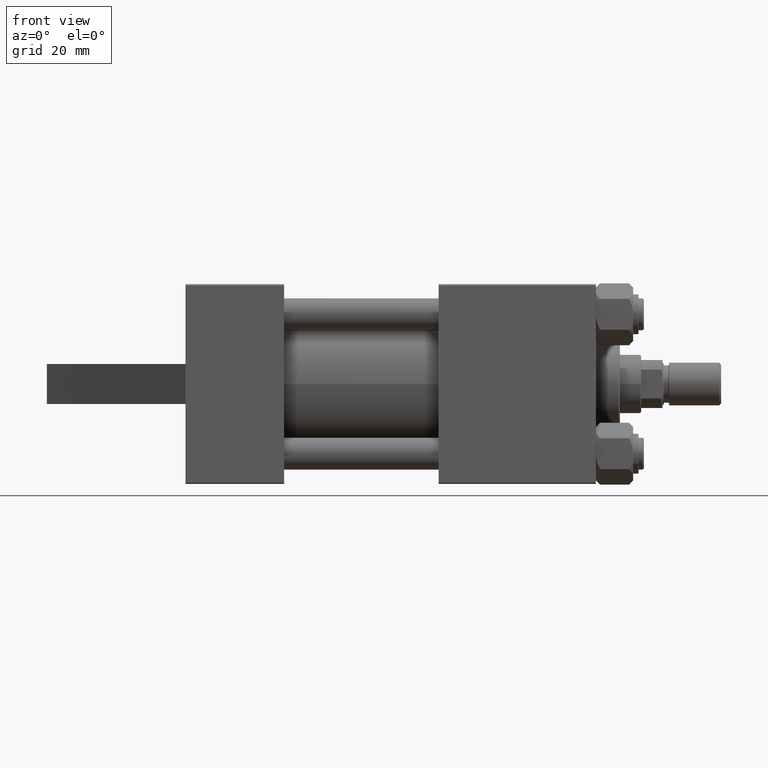
[diagram: clean part render]
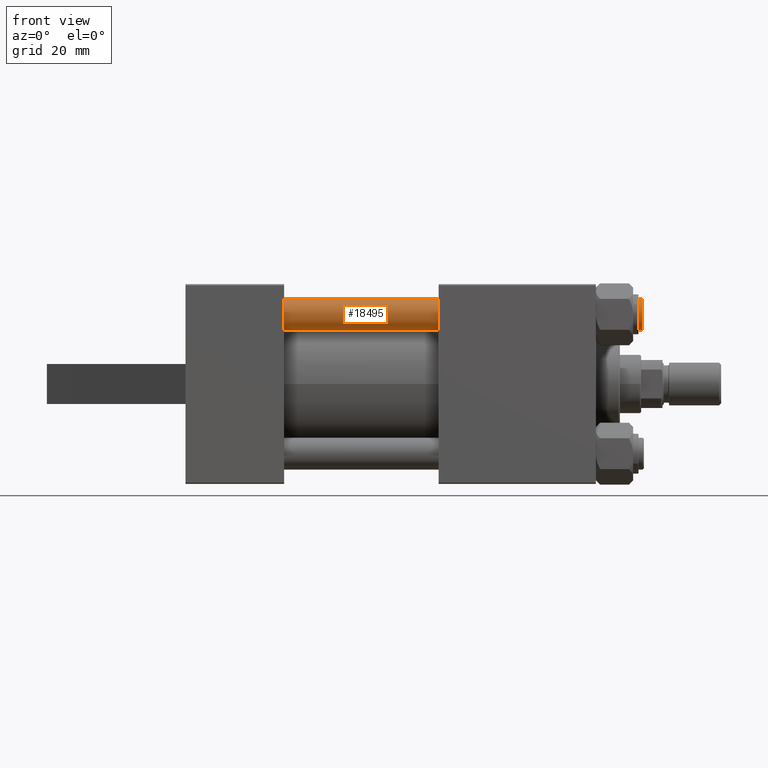
[diagram: same view with one face highlighted and labeled with its STEP entity id]
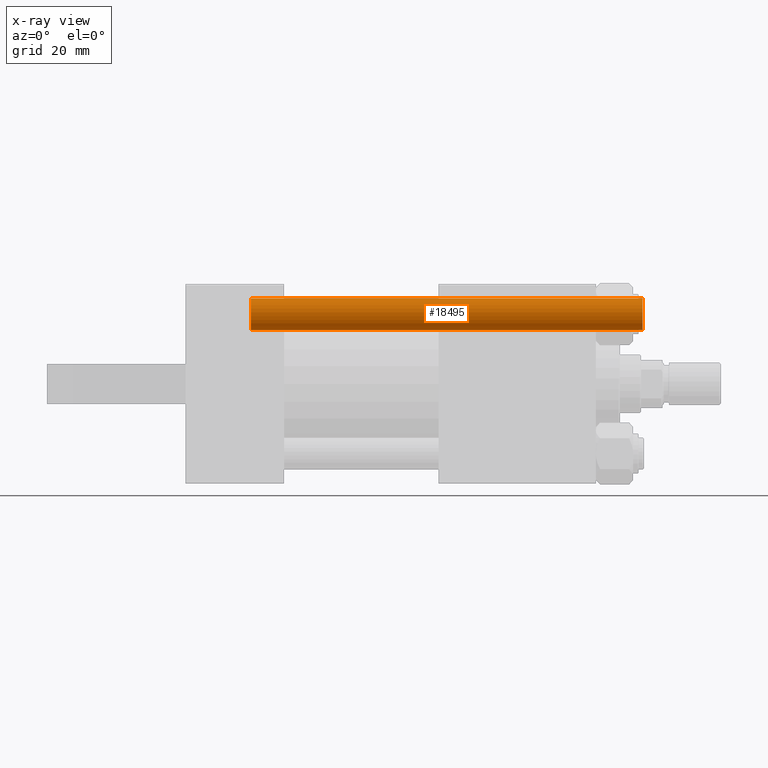
[diagram: x-ray of the same camera — body ghosted, the highlighted face saturated]
A machine part, front view. The second image highlights one B-rep face of the part: STEP entity #18495.
The next image is the same camera in x-ray: the body ghosted, the highlighted face saturated — about 0% of this face is hidden behind the body in this view.
In plain terms, the highlighted cylindrical surface (edge-blend (fillet) strip) has radius 6 mm, axis along (1, 0, 0).
Its self-contained STEP definition (entity closure, byte-faithful):
#356 = CARTESIAN_POINT ( 'NONE',  ( 6.000000000000000888, 7.347880794884120722E-16, 0.5000000000000281997 ) ) ;
#692 = ORIENTED_EDGE ( 'NONE', *, *, #24435, .F. ) ;
#1540 = CARTESIAN_POINT ( 'NONE',  ( -6.000000000000000888, 0.000000000000000000, 147.5000000000000000 ) ) ;
#8440 = VERTEX_POINT ( 'NONE', #356 ) ;
#9517 = DIRECTION ( 'NONE',  ( -0.000000000000000000, -0.000000000000000000, -1.000000000000000000 ) ) ;
#9741 = LINE ( 'NONE', #42201, #23483 ) ;
#10727 = CYLINDRICAL_SURFACE ( 'NONE', #26185, 6.000000000000000888 ) ;
#11098 = VERTEX_POINT ( 'NONE', #22999 ) ;
#11562 = EDGE_CURVE ( 'NONE', #8440, #30013, #25197, .T. ) ;
#14266 = DIRECTION ( 'NONE',  ( -1.000000000000000000, 0.000000000000000000, 0.000000000000000000 ) ) ;
#14567 = DIRECTION ( 'NONE',  ( -0.000000000000000000, -0.000000000000000000, -1.000000000000000000 ) ) ;
#18018 = CARTESIAN_POINT ( 'NONE',  ( 0.000000000000000000, 0.000000000000000000, 148.0000000000000000 ) ) ;
#18495 = ADVANCED_FACE ( 'NONE', ( #33050 ), #10727, .T. ) ;
#21833 = LINE ( 'NONE', #36199, #30130 ) ;
#22999 = CARTESIAN_POINT ( 'NONE',  ( 6.000000000000000888, 7.347880794884120722E-16, 147.5000000000000000 ) ) ;
#23483 = VECTOR ( 'NONE', #9517, 1000.000000000000000 ) ;
#24435 = EDGE_CURVE ( 'NONE', #30860, #30013, #21833, .T. ) ;
#25073 = DIRECTION ( 'NONE',  ( -0.000000000000000000, -0.000000000000000000, -1.000000000000000000 ) ) ;
#25197 = CIRCLE ( 'NONE', #28958, 6.000000000000000888 ) ;
#26185 = AXIS2_PLACEMENT_3D ( 'NONE', #18018, #25073, #14266 ) ;
#28062 = CARTESIAN_POINT ( 'NONE',  ( -6.000000000000000888, 0.000000000000000000, 0.5000000000000281997 ) ) ;
#28724 = DIRECTION ( 'NONE',  ( -0.000000000000000000, -0.000000000000000000, 1.000000000000000000 ) ) ;
#28958 = AXIS2_PLACEMENT_3D ( 'NONE', #43312, #28724, #44002 ) ;
#29429 = CIRCLE ( 'NONE', #33192, 6.000000000000000888 ) ;
#29625 = EDGE_CURVE ( 'NONE', #30860, #11098, #29429, .T. ) ;
#30013 = VERTEX_POINT ( 'NONE', #28062 ) ;
#30130 = VECTOR ( 'NONE', #14567, 1000.000000000000000 ) ;
#30497 = DIRECTION ( 'NONE',  ( 1.000000000000000000, 0.000000000000000000, 0.000000000000000000 ) ) ;
#30860 = VERTEX_POINT ( 'NONE', #1540 ) ;
#30940 = EDGE_CURVE ( 'NONE', #11098, #8440, #9741, .T. ) ;
#31221 = EDGE_LOOP ( 'NONE', ( #40543, #36783, #39848, #692 ) ) ;
#33050 = FACE_OUTER_BOUND ( 'NONE', #31221, .T. ) ;
#33192 = AXIS2_PLACEMENT_3D ( 'NONE', #34498, #44153, #30497 ) ;
#34498 = CARTESIAN_POINT ( 'NONE',  ( 0.000000000000000000, 0.000000000000000000, 147.5000000000000000 ) ) ;
#36199 = CARTESIAN_POINT ( 'NONE',  ( -6.000000000000000888, 0.000000000000000000, 148.0000000000000000 ) ) ;
#36783 = ORIENTED_EDGE ( 'NONE', *, *, #30940, .T. ) ;
#39848 = ORIENTED_EDGE ( 'NONE', *, *, #11562, .T. ) ;
#40543 = ORIENTED_EDGE ( 'NONE', *, *, #29625, .T. ) ;
#42201 = CARTESIAN_POINT ( 'NONE',  ( 6.000000000000000888, 7.347880794884120722E-16, 148.0000000000000000 ) ) ;
#43312 = CARTESIAN_POINT ( 'NONE',  ( 0.000000000000000000, 0.000000000000000000, 0.5000000000000281997 ) ) ;
#44002 = DIRECTION ( 'NONE',  ( 1.000000000000000000, 0.000000000000000000, 0.000000000000000000 ) ) ;
#44153 = DIRECTION ( 'NONE',  ( 0.000000000000000000, 0.000000000000000000, -1.000000000000000000 ) ) ;